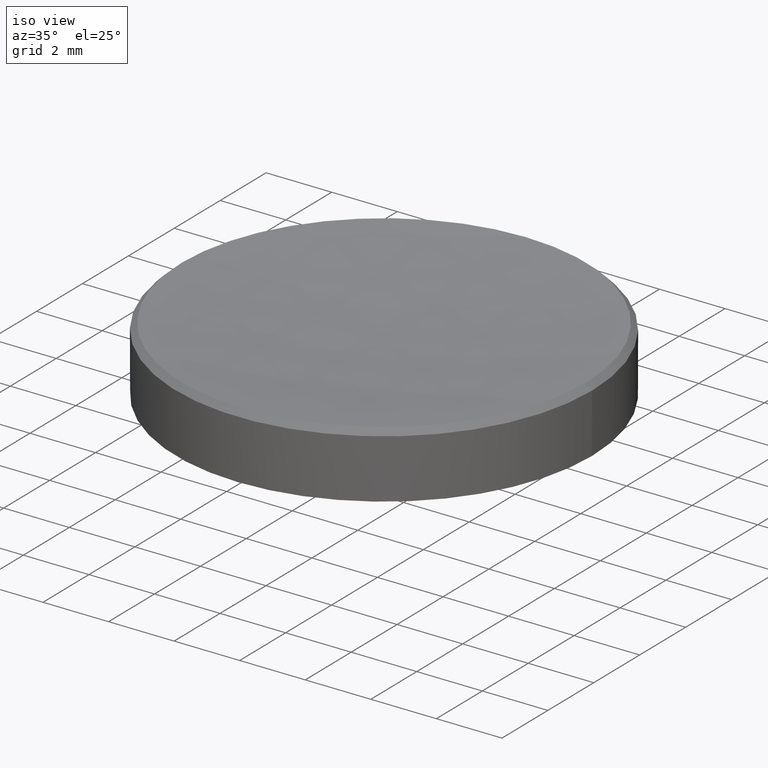
[diagram: clean part render]
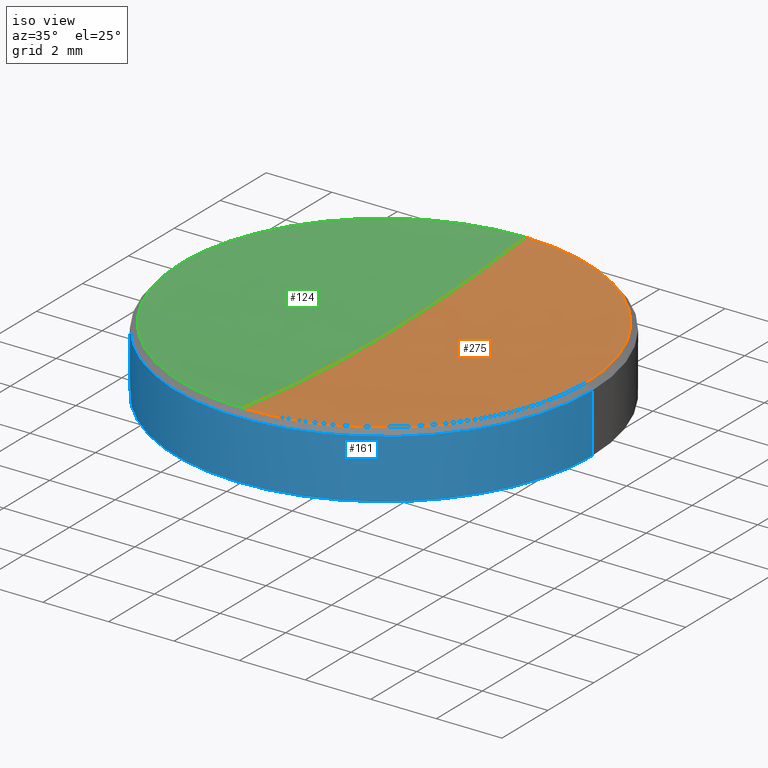
[diagram: same view with three faces highlighted in distinct colors, each labeled with its STEP entity id]
A machine part, iso view with three faces highlighted in distinct colors.
Their STEP definitions:

[orange] entity #275 — the highlighted spherical surface has radius 52.8 mm.
#10 = VERTEX_POINT ( 'NONE', #230 ) ;
#11 = AXIS2_PLACEMENT_3D ( 'NONE', #81, #256, #191 ) ;
#12 = ORIENTED_EDGE ( 'NONE', *, *, #22, .T. ) ;
#21 = DIRECTION ( 'NONE',  ( -1.224646799147353207E-16, -1.000000000000000000, 0.000000000000000000 ) ) ;
#22 = EDGE_CURVE ( 'NONE', #54, #209, #240, .T. ) ;
#27 = ORIENTED_EDGE ( 'NONE', *, *, #71, .T. ) ;
#49 = CIRCLE ( 'NONE', #215, 52.79999999999999005 ) ;
#54 = VERTEX_POINT ( 'NONE', #63 ) ;
#63 = CARTESIAN_POINT ( 'NONE',  ( 6.171335389634259094, 7.667106652983034787E-16, 5.978664610365738596 ) ) ;
#65 = CARTESIAN_POINT ( 'NONE',  ( 0.000000000000000000, 3.233067549749012013E-15, 5.616767355494177494 ) ) ;
#71 = EDGE_CURVE ( 'NONE', #10, #54, #189, .T. ) ;
#76 = DIRECTION ( 'NONE',  ( 1.000000000000000000, 0.000000000000000000, 0.000000000000000000 ) ) ;
#81 = CARTESIAN_POINT ( 'NONE',  ( 0.000000000000000000, 0.000000000000000000, 58.41676735549417288 ) ) ;
#100 = CARTESIAN_POINT ( 'NONE',  ( 0.000000000000000000, 0.000000000000000000, 5.978664610365738596 ) ) ;
#106 = DIRECTION ( 'NONE',  ( 1.000000000000000000, 0.000000000000000000, 0.000000000000000000 ) ) ;
#119 = DIRECTION ( 'NONE',  ( 1.000000000000000000, 0.000000000000000000, 0.000000000000000000 ) ) ;
#121 = AXIS2_PLACEMENT_3D ( 'NONE', #100, #169, #119 ) ;
#127 = CARTESIAN_POINT ( 'NONE',  ( 0.000000000000000000, 0.000000000000000000, 5.978664610365738596 ) ) ;
#129 = CARTESIAN_POINT ( 'NONE',  ( 0.000000000000000000, 6.171335389634308832, 5.978664610365742149 ) ) ;
#137 = DIRECTION ( 'NONE',  ( -0.000000000000000000, -0.000000000000000000, 1.000000000000000000 ) ) ;
#163 = AXIS2_PLACEMENT_3D ( 'NONE', #220, #106, #216 ) ;
#169 = DIRECTION ( 'NONE',  ( -0.000000000000000000, -0.000000000000000000, 1.000000000000000000 ) ) ;
#185 = EDGE_CURVE ( 'NONE', #202, #10, #49, .T. ) ;
#189 = CIRCLE ( 'NONE', #264, 6.171335389634259094 ) ;
#191 = DIRECTION ( 'NONE',  ( 0.000000000000000000, 1.000000000000000000, 0.000000000000000000 ) ) ;
#202 = VERTEX_POINT ( 'NONE', #65 ) ;
#209 = VERTEX_POINT ( 'NONE', #129 ) ;
#215 = AXIS2_PLACEMENT_3D ( 'NONE', #262, #259, #21 ) ;
#216 = DIRECTION ( 'NONE',  ( 0.000000000000000000, 0.000000000000000000, -1.000000000000000000 ) ) ;
#220 = CARTESIAN_POINT ( 'NONE',  ( 0.000000000000000000, 0.000000000000000000, 58.41676735549417288 ) ) ;
#223 = EDGE_CURVE ( 'NONE', #202, #209, #282, .T. ) ;
#224 = ORIENTED_EDGE ( 'NONE', *, *, #185, .T. ) ;
#229 = ORIENTED_EDGE ( 'NONE', *, *, #223, .F. ) ;
#230 = CARTESIAN_POINT ( 'NONE',  ( -7.557706131380439534E-16, -6.171335389634308832, 5.978664610365742149 ) ) ;
#240 = CIRCLE ( 'NONE', #121, 6.171335389634259094 ) ;
#251 = EDGE_LOOP ( 'NONE', ( #229, #224, #27, #12 ) ) ;
#256 = DIRECTION ( 'NONE',  ( -1.000000000000000000, 0.000000000000000000, 0.000000000000000000 ) ) ;
#259 = DIRECTION ( 'NONE',  ( -1.000000000000000000, 1.224646799147353207E-16, 0.000000000000000000 ) ) ;
#262 = CARTESIAN_POINT ( 'NONE',  ( 0.000000000000000000, 0.000000000000000000, 58.41676735549417288 ) ) ;
#264 = AXIS2_PLACEMENT_3D ( 'NONE', #127, #137, #76 ) ;
#275 = ADVANCED_FACE ( 'NONE', ( #280 ), #277, .F. ) ;
#277 = SPHERICAL_SURFACE ( 'NONE', #11, 52.79999999999999005 ) ;
#280 = FACE_OUTER_BOUND ( 'NONE', #251, .T. ) ;
#282 = CIRCLE ( 'NONE', #163, 52.79999999999999005 ) ;

[blue] entity #161 — the highlighted cylindrical surface (partial cylindrical patch) has radius 6.35 mm, axis along (-0, -0, -1).
#1 = ORIENTED_EDGE ( 'NONE', *, *, #2, .T. ) ;
#2 = EDGE_CURVE ( 'NONE', #90, #249, #226, .T. ) ;
#4 = CARTESIAN_POINT ( 'NONE',  ( -6.349999999999999645, 0.000000000000000000, 5.800000000000006928 ) ) ;
#8 = CARTESIAN_POINT ( 'NONE',  ( -6.349999999999999645, 0.000000000000000000, 10.00000000000000000 ) ) ;
#16 = CARTESIAN_POINT ( 'NONE',  ( -7.776507174585693149E-16, -6.350000000000001421, 3.999999999999999112 ) ) ;
#17 = DIRECTION ( 'NONE',  ( -0.000000000000000000, -0.000000000000000000, -1.000000000000000000 ) ) ;
#18 = DIRECTION ( 'NONE',  ( -0.000000000000000000, -0.000000000000000000, -1.000000000000000000 ) ) ;
#33 = VERTEX_POINT ( 'NONE', #122 ) ;
#36 = ORIENTED_EDGE ( 'NONE', *, *, #67, .F. ) ;
#39 = DIRECTION ( 'NONE',  ( -0.000000000000000000, -0.000000000000000000, 1.000000000000000000 ) ) ;
#47 = VECTOR ( 'NONE', #17, 1000.000000000000000 ) ;
#52 = ORIENTED_EDGE ( 'NONE', *, *, #213, .T. ) ;
#66 = CYLINDRICAL_SURFACE ( 'NONE', #135, 6.349999999999999645 ) ;
#67 = EDGE_CURVE ( 'NONE', #33, #245, #103, .T. ) ;
#72 = AXIS2_PLACEMENT_3D ( 'NONE', #208, #171, #248 ) ;
#90 = VERTEX_POINT ( 'NONE', #4 ) ;
#91 = VECTOR ( 'NONE', #143, 1000.000000000000000 ) ;
#102 = CARTESIAN_POINT ( 'NONE',  ( 6.349999999999998757, 7.776507174585691177E-16, 4.000000000000000000 ) ) ;
#103 = LINE ( 'NONE', #147, #47 ) ;
#108 = CARTESIAN_POINT ( 'NONE',  ( 0.000000000000000000, 0.000000000000000000, 4.000000000000000000 ) ) ;
#111 = DIRECTION ( 'NONE',  ( 1.000000000000000000, 0.000000000000000000, 0.000000000000000000 ) ) ;
#114 = EDGE_CURVE ( 'NONE', #33, #90, #254, .T. ) ;
#122 = CARTESIAN_POINT ( 'NONE',  ( 6.349999999999999645, 7.776507174585692163E-16, 5.800000000000006928 ) ) ;
#125 = CIRCLE ( 'NONE', #244, 6.349999999999998757 ) ;
#135 = AXIS2_PLACEMENT_3D ( 'NONE', #158, #18, #172 ) ;
#143 = DIRECTION ( 'NONE',  ( -0.000000000000000000, -0.000000000000000000, -1.000000000000000000 ) ) ;
#147 = CARTESIAN_POINT ( 'NONE',  ( 6.349999999999999645, 7.776507174585692163E-16, 10.00000000000000000 ) ) ;
#152 = DIRECTION ( 'NONE',  ( 1.000000000000000000, 0.000000000000000000, 0.000000000000000000 ) ) ;
#158 = CARTESIAN_POINT ( 'NONE',  ( 0.000000000000000000, 0.000000000000000000, 10.00000000000000000 ) ) ;
#161 = ADVANCED_FACE ( 'NONE', ( #193 ), #66, .T. ) ;
#171 = DIRECTION ( 'NONE',  ( 0.000000000000000000, 0.000000000000000000, -1.000000000000000000 ) ) ;
#172 = DIRECTION ( 'NONE',  ( -1.000000000000000000, 0.000000000000000000, 0.000000000000000000 ) ) ;
#183 = ORIENTED_EDGE ( 'NONE', *, *, #114, .T. ) ;
#186 = AXIS2_PLACEMENT_3D ( 'NONE', #108, #39, #111 ) ;
#190 = CARTESIAN_POINT ( 'NONE',  ( -6.349999999999998757, 0.000000000000000000, 4.000000000000000000 ) ) ;
#193 = FACE_OUTER_BOUND ( 'NONE', #225, .T. ) ;
#201 = CIRCLE ( 'NONE', #186, 6.349999999999998757 ) ;
#208 = CARTESIAN_POINT ( 'NONE',  ( 0.000000000000000000, 0.000000000000000000, 5.800000000000006928 ) ) ;
#213 = EDGE_CURVE ( 'NONE', #249, #272, #125, .T. ) ;
#219 = CARTESIAN_POINT ( 'NONE',  ( 0.000000000000000000, 0.000000000000000000, 4.000000000000000000 ) ) ;
#225 = EDGE_LOOP ( 'NONE', ( #36, #183, #1, #52, #247 ) ) ;
#226 = LINE ( 'NONE', #8, #91 ) ;
#232 = EDGE_CURVE ( 'NONE', #272, #245, #201, .T. ) ;
#238 = DIRECTION ( 'NONE',  ( -0.000000000000000000, -0.000000000000000000, 1.000000000000000000 ) ) ;
#244 = AXIS2_PLACEMENT_3D ( 'NONE', #219, #238, #152 ) ;
#245 = VERTEX_POINT ( 'NONE', #102 ) ;
#247 = ORIENTED_EDGE ( 'NONE', *, *, #232, .T. ) ;
#248 = DIRECTION ( 'NONE',  ( 1.000000000000000000, 0.000000000000000000, 0.000000000000000000 ) ) ;
#249 = VERTEX_POINT ( 'NONE', #190 ) ;
#254 = CIRCLE ( 'NONE', #72, 6.349999999999999645 ) ;
#272 = VERTEX_POINT ( 'NONE', #16 ) ;

[green] entity #124 — the highlighted spherical surface has radius 52.8 mm.
#5 = DIRECTION ( 'NONE',  ( 1.000000000000000000, 0.000000000000000000, 0.000000000000000000 ) ) ;
#10 = VERTEX_POINT ( 'NONE', #230 ) ;
#15 = CARTESIAN_POINT ( 'NONE',  ( -6.171335389634259094, 0.000000000000000000, 5.978664610365738596 ) ) ;
#20 = DIRECTION ( 'NONE',  ( -1.000000000000000000, 0.000000000000000000, 0.000000000000000000 ) ) ;
#21 = DIRECTION ( 'NONE',  ( -1.224646799147353207E-16, -1.000000000000000000, 0.000000000000000000 ) ) ;
#30 = ORIENTED_EDGE ( 'NONE', *, *, #185, .F. ) ;
#43 = CARTESIAN_POINT ( 'NONE',  ( 0.000000000000000000, 0.000000000000000000, 5.978664610365738596 ) ) ;
#49 = CIRCLE ( 'NONE', #215, 52.79999999999999005 ) ;
#51 = EDGE_CURVE ( 'NONE', #209, #243, #196, .T. ) ;
#55 = AXIS2_PLACEMENT_3D ( 'NONE', #123, #214, #5 ) ;
#65 = CARTESIAN_POINT ( 'NONE',  ( 0.000000000000000000, 3.233067549749012013E-15, 5.616767355494177494 ) ) ;
#79 = EDGE_LOOP ( 'NONE', ( #30, #166, #162, #97 ) ) ;
#97 = ORIENTED_EDGE ( 'NONE', *, *, #242, .T. ) ;
#106 = DIRECTION ( 'NONE',  ( 1.000000000000000000, 0.000000000000000000, 0.000000000000000000 ) ) ;
#112 = AXIS2_PLACEMENT_3D ( 'NONE', #260, #20, #236 ) ;
#123 = CARTESIAN_POINT ( 'NONE',  ( 0.000000000000000000, 0.000000000000000000, 5.978664610365738596 ) ) ;
#124 = ADVANCED_FACE ( 'NONE', ( #141 ), #177, .F. ) ;
#128 = DIRECTION ( 'NONE',  ( -0.000000000000000000, -0.000000000000000000, 1.000000000000000000 ) ) ;
#129 = CARTESIAN_POINT ( 'NONE',  ( 0.000000000000000000, 6.171335389634308832, 5.978664610365742149 ) ) ;
#132 = DIRECTION ( 'NONE',  ( 1.000000000000000000, 0.000000000000000000, 0.000000000000000000 ) ) ;
#141 = FACE_OUTER_BOUND ( 'NONE', #79, .T. ) ;
#154 = AXIS2_PLACEMENT_3D ( 'NONE', #43, #128, #132 ) ;
#162 = ORIENTED_EDGE ( 'NONE', *, *, #51, .T. ) ;
#163 = AXIS2_PLACEMENT_3D ( 'NONE', #220, #106, #216 ) ;
#166 = ORIENTED_EDGE ( 'NONE', *, *, #223, .T. ) ;
#177 = SPHERICAL_SURFACE ( 'NONE', #112, 52.79999999999999005 ) ;
#185 = EDGE_CURVE ( 'NONE', #202, #10, #49, .T. ) ;
#196 = CIRCLE ( 'NONE', #55, 6.171335389634259094 ) ;
#202 = VERTEX_POINT ( 'NONE', #65 ) ;
#209 = VERTEX_POINT ( 'NONE', #129 ) ;
#214 = DIRECTION ( 'NONE',  ( -0.000000000000000000, -0.000000000000000000, 1.000000000000000000 ) ) ;
#215 = AXIS2_PLACEMENT_3D ( 'NONE', #262, #259, #21 ) ;
#216 = DIRECTION ( 'NONE',  ( 0.000000000000000000, 0.000000000000000000, -1.000000000000000000 ) ) ;
#220 = CARTESIAN_POINT ( 'NONE',  ( 0.000000000000000000, 0.000000000000000000, 58.41676735549417288 ) ) ;
#223 = EDGE_CURVE ( 'NONE', #202, #209, #282, .T. ) ;
#230 = CARTESIAN_POINT ( 'NONE',  ( -7.557706131380439534E-16, -6.171335389634308832, 5.978664610365742149 ) ) ;
#236 = DIRECTION ( 'NONE',  ( 0.000000000000000000, 1.000000000000000000, 0.000000000000000000 ) ) ;
#242 = EDGE_CURVE ( 'NONE', #243, #10, #261, .T. ) ;
#243 = VERTEX_POINT ( 'NONE', #15 ) ;
#259 = DIRECTION ( 'NONE',  ( -1.000000000000000000, 1.224646799147353207E-16, 0.000000000000000000 ) ) ;
#260 = CARTESIAN_POINT ( 'NONE',  ( 0.000000000000000000, 0.000000000000000000, 58.41676735549417288 ) ) ;
#261 = CIRCLE ( 'NONE', #154, 6.171335389634259094 ) ;
#262 = CARTESIAN_POINT ( 'NONE',  ( 0.000000000000000000, 0.000000000000000000, 58.41676735549417288 ) ) ;
#282 = CIRCLE ( 'NONE', #163, 52.79999999999999005 ) ;